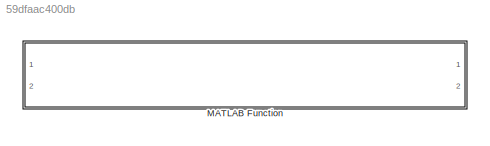
MODEL slx_59dfaac400db
KIND model
CONFIG AbsTol = auto
CONFIG FixedStep = auto
CONFIG MaxStep = auto
CONFIG MinStep = auto
CONFIG RelTol = 1e-3
CONFIG SampleTimeConstraint = Unconstrained
CONFIG Solver = VariableStepAuto
CONFIG SolverMode = Auto
CONFIG SolverName = VariableStepAuto
CONFIG StartTime = 0.0
CONFIG StopTime = 10.0
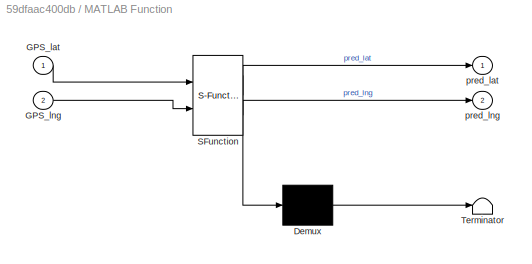
BLOCK [SubSystem] MATLAB Function
  ErrorFcn = Stateflow.Translate.translate
  PermitHierarchicalResolution = ExplicitOnly
  Ports = [2, 2]
  RequestExecContextInheritance = off
  SFBlockType = MATLAB Function
  TreatAsAtomicUnit = on
  Variant = off
BLOCK [Demux] MATLAB Function/ Demux 
  Outputs = 1
  Ports = [1, 1]
BLOCK [S-Function] MATLAB Function/ SFunction 
  EnableBusSupport = off
  FunctionName = sf_sfun
  PortCounts = [2 3]
  Ports = [2, 3]
  SFunctionDeploymentMode = off
  Tag = Stateflow S-Function pathPredict 2
BLOCK [Terminator] MATLAB Function/ Terminator 
BLOCK [Inport] MATLAB Function/GPS_lat
  IconDisplay = Port number
BLOCK [Inport] MATLAB Function/GPS_lng
  IconDisplay = Port number
  Port = 2
BLOCK [Outport] MATLAB Function/pred_lat
  IconDisplay = Port number
BLOCK [Outport] MATLAB Function/pred_lng
  IconDisplay = Port number
  Port = 2
CHART MATLAB Function states=1 transitions=1
  STATE_LABEL 'eML_blk_kernel()'
  STATE_LABEL 'SCRIPT:\nfunction [pred_lat,pred_lng] = pathPredict(GPS_lat,GPS_lng)\nprediction = vehiclePathPredObj.pathPredict(GPS_lat,GPS_lng);\npred_lat = prediction(:,1);\npred_lng = prediction(:,2);\nend'
